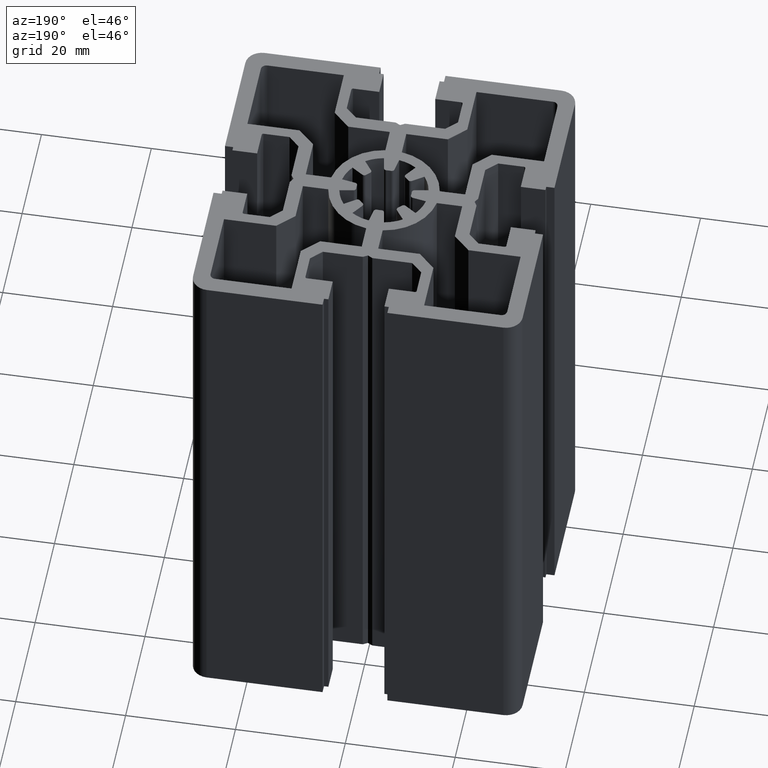
[diagram: clean part render]
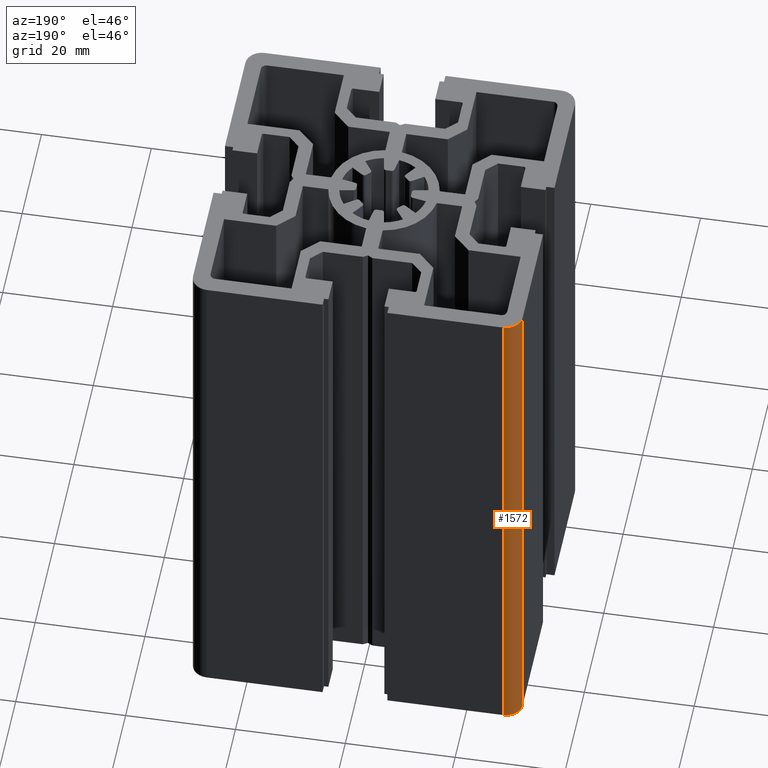
[diagram: same view with one face highlighted and labeled with its STEP entity id]
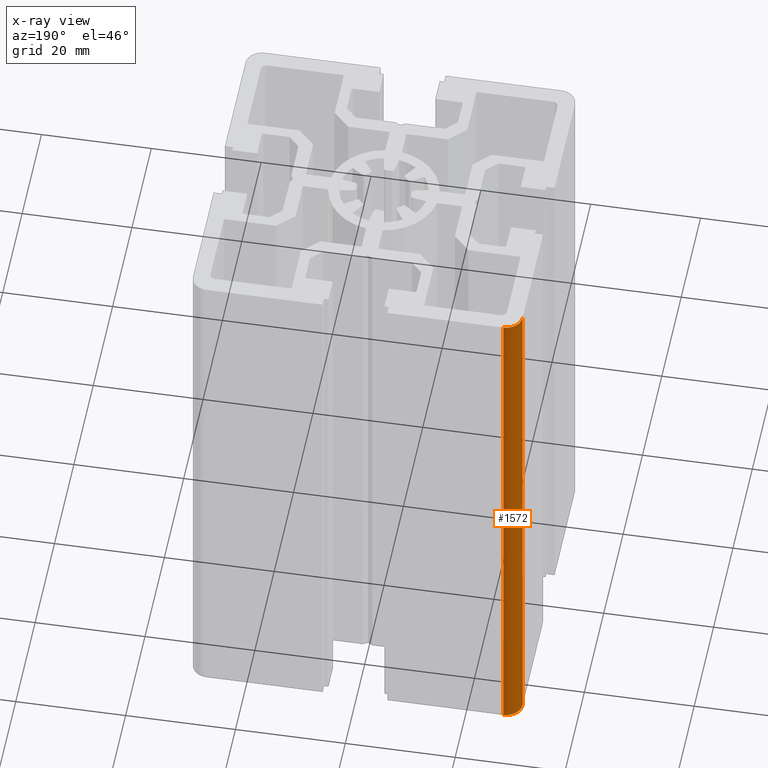
[diagram: x-ray of the same camera — body ghosted, the highlighted face saturated]
A machine part, auxiliary view. The second image highlights one B-rep face of the part: STEP entity #1572.
The next image is the same camera in x-ray: the body ghosted, the highlighted face saturated — about 0% of this face is hidden behind the body in this view.
In plain terms, the highlighted cylindrical surface (edge-blend (fillet) strip) has radius 3 mm, axis along (-0, -0, -1).
Its self-contained STEP definition (entity closure, byte-faithful):
#582 = EDGE_CURVE ( 'NONE', #583, #594, #2753, .T. ) ;
#583 = VERTEX_POINT ( 'NONE', #2764 ) ;
#594 = VERTEX_POINT ( 'NONE', #2735 ) ;
#1005 = EDGE_CURVE ( 'NONE', #1010, #1074, #3537, .T. ) ;
#1010 = VERTEX_POINT ( 'NONE', #3533 ) ;
#1074 = VERTEX_POINT ( 'NONE', #3660 ) ;
#1566 = ORIENTED_EDGE ( 'NONE', *, *, #582, .F. ) ;
#1569 = ORIENTED_EDGE ( 'NONE', *, *, #1575, .F. ) ;
#1570 = EDGE_LOOP ( 'NONE', ( #1583, #1569, #1566, #1620 ) ) ;
#1572 = ADVANCED_FACE ( 'NONE', ( #6019 ), #5990, .T. ) ;
#1575 = EDGE_CURVE ( 'NONE', #594, #1074, #6059, .T. ) ;
#1583 = ORIENTED_EDGE ( 'NONE', *, *, #1005, .T. ) ;
#1586 = EDGE_CURVE ( 'NONE', #583, #1010, #6043, .T. ) ;
#1620 = ORIENTED_EDGE ( 'NONE', *, *, #1586, .T. ) ;
#2735 = CARTESIAN_POINT ( 'NONE',  ( -30.00000000000000000, 27.00000000000000000, 100.0000000000000000 ) ) ;
#2743 = DIRECTION ( 'NONE',  ( 1.000000000000000000, 0.0000000000000000000, 0.0000000000000000000 ) ) ;
#2744 = DIRECTION ( 'NONE',  ( 0.0000000000000000000, 0.0000000000000000000, 1.000000000000000000 ) ) ;
#2745 = CARTESIAN_POINT ( 'NONE',  ( -26.99999999999999600, 26.99999999999999600, 100.0000000000000000 ) ) ;
#2746 = AXIS2_PLACEMENT_3D ( 'NONE', #2745, #2744, #2743 ) ;
#2753 = CIRCLE ( 'NONE', #2746, 3.000000000000002700 ) ;
#2764 = CARTESIAN_POINT ( 'NONE',  ( -27.00000000000000000, 30.00000000000000000, 100.0000000000000000 ) ) ;
#3506 = CARTESIAN_POINT ( 'NONE',  ( -26.99999999999999600, 26.99999999999999600, 0.0000000000000000000 ) ) ;
#3533 = CARTESIAN_POINT ( 'NONE',  ( -27.00000000000000000, 30.00000000000000000, 0.0000000000000000000 ) ) ;
#3535 = DIRECTION ( 'NONE',  ( 1.000000000000000000, 0.0000000000000000000, 0.0000000000000000000 ) ) ;
#3536 = DIRECTION ( 'NONE',  ( 0.0000000000000000000, 0.0000000000000000000, 1.000000000000000000 ) ) ;
#3537 = CIRCLE ( 'NONE', #3546, 3.000000000000002700 ) ;
#3546 = AXIS2_PLACEMENT_3D ( 'NONE', #3506, #3536, #3535 ) ;
#3660 = CARTESIAN_POINT ( 'NONE',  ( -30.00000000000000000, 27.00000000000000000, 0.0000000000000000000 ) ) ;
#5524 = DIRECTION ( 'NONE',  ( -1.000000000000000000, 0.0000000000000000000, 0.0000000000000000000 ) ) ;
#5559 = DIRECTION ( 'NONE',  ( -0.0000000000000000000, -0.0000000000000000000, -1.000000000000000000 ) ) ;
#5990 = CYLINDRICAL_SURFACE ( 'NONE', #6020, 3.000000000000002700 ) ;
#6019 = FACE_OUTER_BOUND ( 'NONE', #1570, .T. ) ;
#6020 = AXIS2_PLACEMENT_3D ( 'NONE', #6035, #5559, #5524 ) ;
#6035 = CARTESIAN_POINT ( 'NONE',  ( -26.99999999999999600, 26.99999999999999600, 100.0000000000000000 ) ) ;
#6043 = LINE ( 'NONE', #6048, #6096 ) ;
#6048 = CARTESIAN_POINT ( 'NONE',  ( -27.00000000000000000, 30.00000000000000000, 100.0000000000000000 ) ) ;
#6054 = DIRECTION ( 'NONE',  ( -0.0000000000000000000, -0.0000000000000000000, -1.000000000000000000 ) ) ;
#6055 = VECTOR ( 'NONE', #6054, 1000.000000000000000 ) ;
#6056 = CARTESIAN_POINT ( 'NONE',  ( -30.00000000000000000, 27.00000000000000000, 100.0000000000000000 ) ) ;
#6059 = LINE ( 'NONE', #6056, #6055 ) ;
#6095 = DIRECTION ( 'NONE',  ( -0.0000000000000000000, -0.0000000000000000000, -1.000000000000000000 ) ) ;
#6096 = VECTOR ( 'NONE', #6095, 1000.000000000000000 ) ;